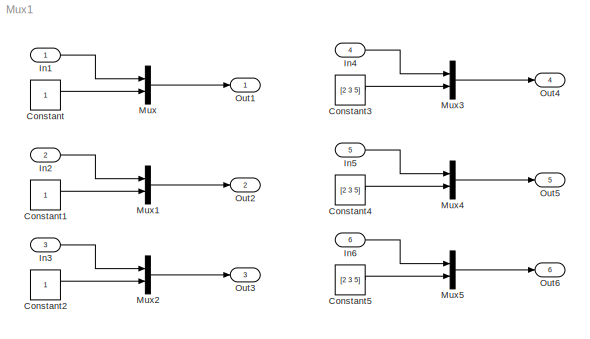
MODEL Mux1
KIND model
BLOCK [Constant] Constant
  OutDataTypeStr = double
  SID = 7
BLOCK [Constant] Constant1
  OutDataTypeStr = int8
  SID = 8
BLOCK [Constant] Constant2
  OutDataTypeStr = boolean
  SID = 9
BLOCK [Constant] Constant3
  OutDataTypeStr = double
  SID = 10
  Value = [2 3 5]
BLOCK [Constant] Constant4
  OutDataTypeStr = int8
  SID = 11
  Value = [2 3 5]
BLOCK [Constant] Constant5
  OutDataTypeStr = boolean
  SID = 12
  Value = [2 3 5]
BLOCK [Inport] In1
  IconDisplay = Port number
  OutDataTypeStr = double
  SID = 1
BLOCK [Inport] In2
  IconDisplay = Port number
  OutDataTypeStr = int8
  Port = 2
  SID = 2
BLOCK [Inport] In3
  IconDisplay = Port number
  OutDataTypeStr = boolean
  Port = 3
  SID = 3
BLOCK [Inport] In4
  IconDisplay = Port number
  OutDataTypeStr = double
  Port = 4
  SID = 4
BLOCK [Inport] In5
  IconDisplay = Port number
  OutDataTypeStr = int8
  Port = 5
  SID = 5
BLOCK [Inport] In6
  IconDisplay = Port number
  OutDataTypeStr = boolean
  Port = 6
  SID = 6
BLOCK [Mux] Mux
  DisplayOption = bar
  Inputs = 2
  Ports = [2, 1]
  SID = 16
BLOCK [Mux] Mux1
  DisplayOption = bar
  Inputs = 2
  Ports = [2, 1]
  SID = 17
BLOCK [Mux] Mux2
  DisplayOption = bar
  Inputs = 2
  Ports = [2, 1]
  SID = 18
BLOCK [Mux] Mux3
  DisplayOption = bar
  Inputs = 2
  Ports = [2, 1]
  SID = 19
BLOCK [Mux] Mux4
  DisplayOption = bar
  Inputs = 2
  Ports = [2, 1]
  SID = 20
BLOCK [Mux] Mux5
  DisplayOption = bar
  Inputs = 2
  Ports = [2, 1]
  SID = 21
BLOCK [Outport] Out1
  IconDisplay = Port number
  SID = 25
BLOCK [Outport] Out2
  IconDisplay = Port number
  Port = 2
  SID = 26
BLOCK [Outport] Out3
  IconDisplay = Port number
  Port = 3
  SID = 27
BLOCK [Outport] Out4
  IconDisplay = Port number
  Port = 4
  SID = 28
BLOCK [Outport] Out5
  IconDisplay = Port number
  Port = 5
  SID = 29
BLOCK [Outport] Out6
  IconDisplay = Port number
  Port = 6
  SID = 30
LINE Constant1:1 -> Mux1:2
LINE Constant2:1 -> Mux2:2
LINE Constant3:1 -> Mux3:2
LINE Constant4:1 -> Mux4:2
LINE Constant5:1 -> Mux5:2
LINE Constant:1 -> Mux:2
LINE In1:1 -> Mux:1
LINE In2:1 -> Mux1:1
LINE In3:1 -> Mux2:1
LINE In4:1 -> Mux3:1
LINE In5:1 -> Mux4:1
LINE In6:1 -> Mux5:1
LINE Mux1:1 -> Out2:1
LINE Mux2:1 -> Out3:1
LINE Mux3:1 -> Out4:1
LINE Mux4:1 -> Out5:1
LINE Mux5:1 -> Out6:1
LINE Mux:1 -> Out1:1
